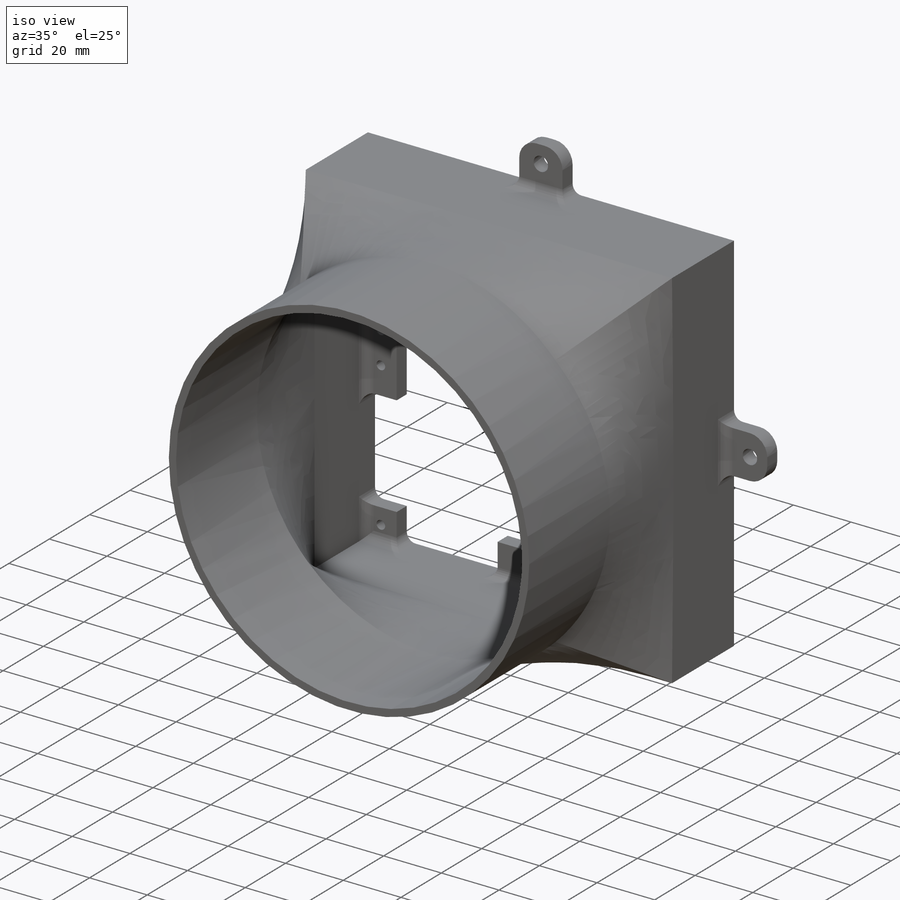
[diagram: iso view]
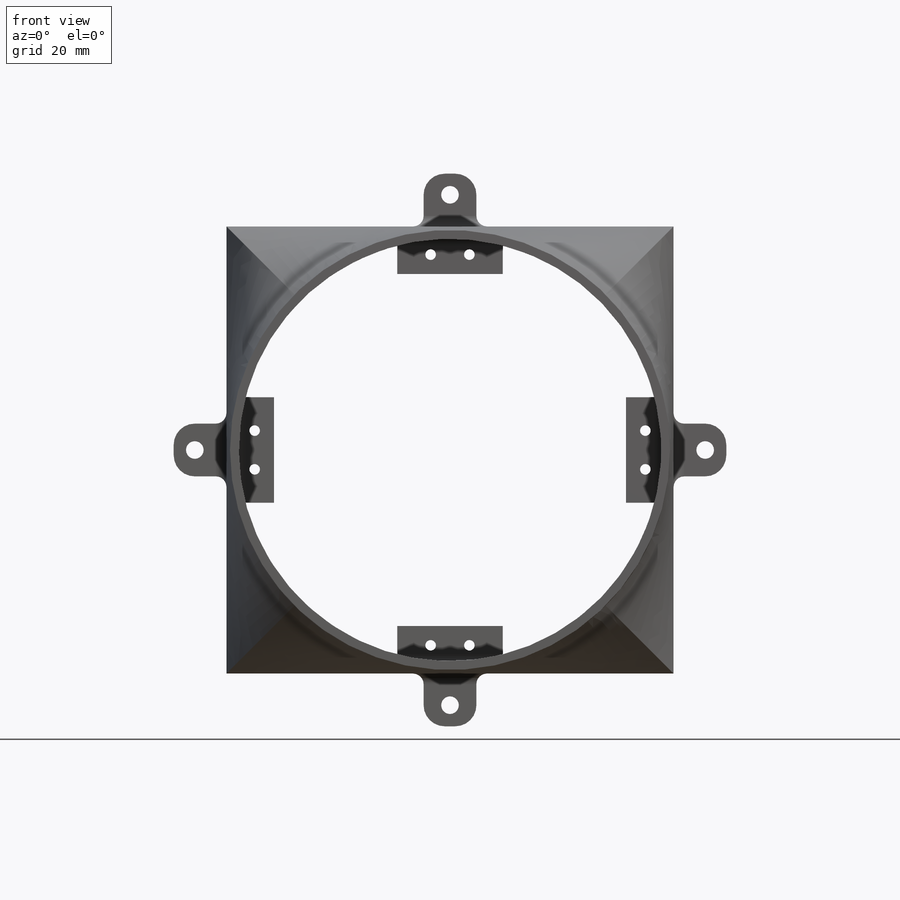
[diagram: front view]
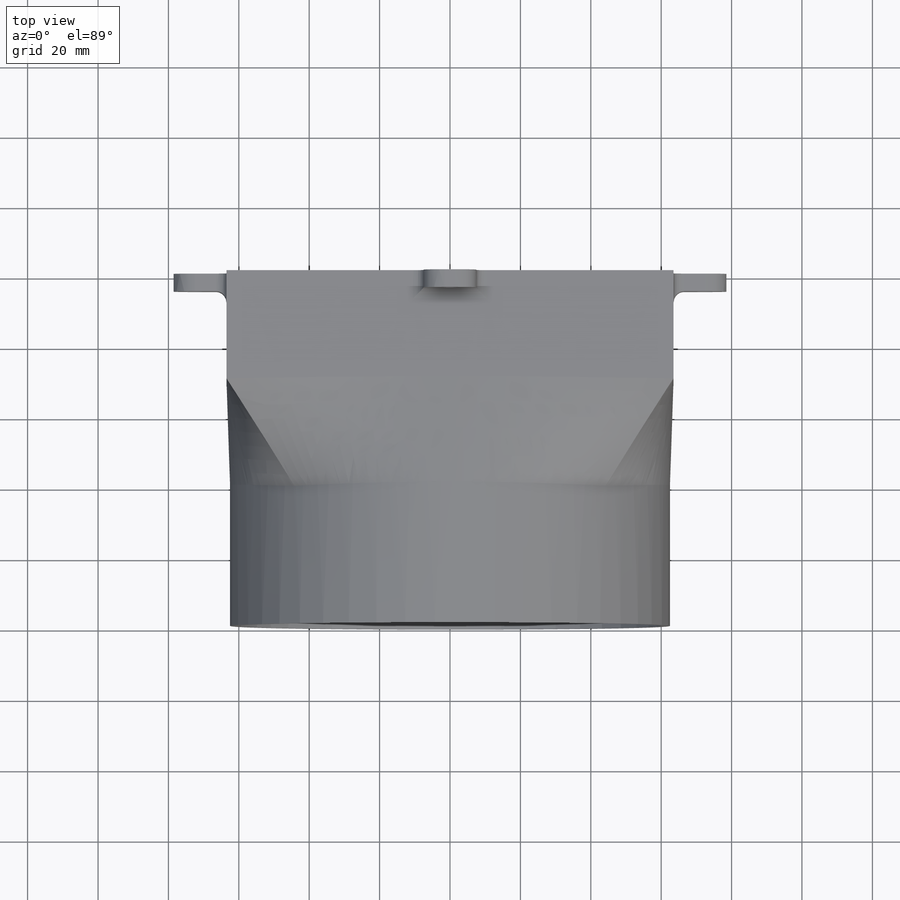
[diagram: top view]
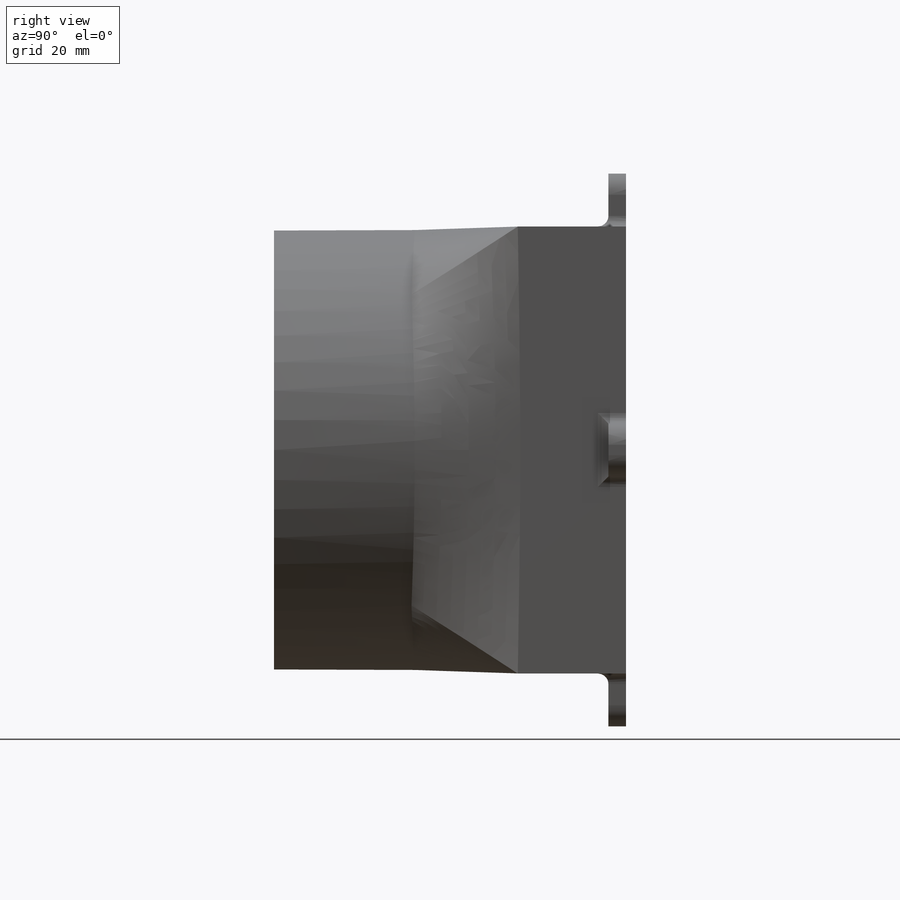
[diagram: right view]
SOLIDWORKS PART (.sldprt)
format: sldprt  version: not decoded by parser v0  size: 570,880 bytes
history: native  units: mm
features: sketch x6, plane x4, extrude x4, fillet x3, cut_extrude x2, material x1, shell x1 (+9 scaffold rows collapsed)
feature tree (30):
  scaffold x9  (default folders/planes/origin — collapsed)
  material  "Matériau <non spécifié>"
  plane  "Plan de face"
  plane  "Plan de dessus"
  plane  "Plan de droite"
  sketch  "Esquisse1"  dims[D1=125.0mm D2=120.0mm]
  extrude  "Boss.-Extru.1"  Depth=40mm
  plane  "Plan1"  Offset=30mm
  sketch  "Esquisse2"  dims[D1=122.0mm D2=122.0mm D3=127.0mm D4=127.0mm]
  extrude  "Boss.-Extru.2"  Depth=30mm
  shell  "Coque5"  Thickness=2.5mm
  sketch  "Esquisse3"  dims[D1=15.0mm]
  extrude  "Boss.-Extru.3"  Depth=5mm
  fillet  "Congé5"  Radius=3mm
  sketch  "Esquisse4"  dims[D1=5.0mm]
  fillet  "Congé6"  Radius=6mm
  cut_extrude  "Enlèv. mat.-Extru.1"  [1 undecoded]
  sketch  "Esquisse5"  dims[D1=11.0mm D2=30.0mm]
  extrude  "Boss.-Extru.4"  Depth=5mm
  fillet  "Congé7"  Radius=3mm
  sketch  "Esquisse6"  dims[c1.D1=3.0mm c1.D2=50.0mm c1.D3=50.0mm c1.D4=50.0mm c1.D5=50.0mm c1.D6=5.5mm c1.D7=11.0mm c2.D6=5.5mm c2.D8=5.5mm c2.D9=11.0mm]
  cut_extrude  "Enlèv. mat.-Extru.2"  [1 undecoded]
decode coverage: 14 of 16 modeling features carry decoded parameters
note: 2 parameter values undecoded
note: suppression state not decoded; provenance and decode notes live in map.json
